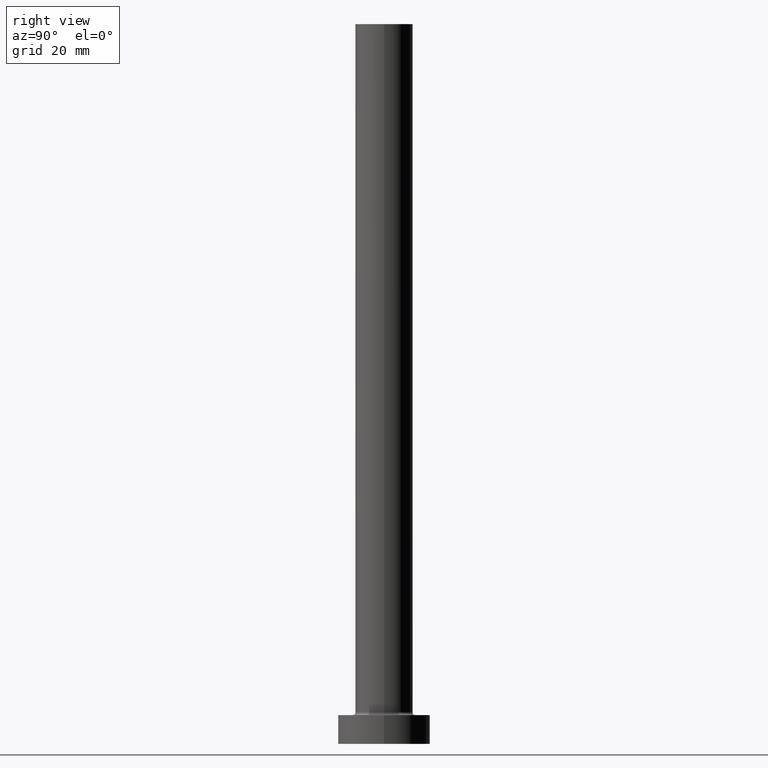
[diagram: clean part render]
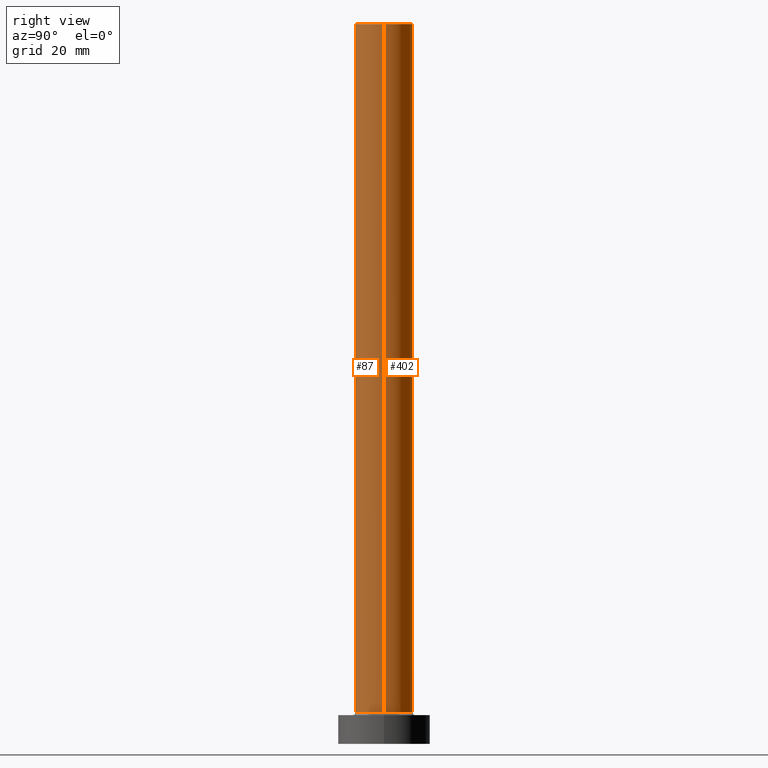
[diagram: same view with one multi-face feature highlighted, each face labeled with its STEP entity id]
A machine part, right view. The highlighted faces form ONE feature: a constant-radius fillet chain: 2 tangent blend faces with common blend radius 5 mm. The faces share edges in the B-rep.
Their STEP definitions:
[1] entity #402 (Cylinder):
#7 = CARTESIAN_POINT ( 'NONE',  ( -5.000000000000000000, 0.000000000000000000, 125.0000000000000000 ) ) ;
#25 = CARTESIAN_POINT ( 'NONE',  ( 5.000000000000000000, 6.123233995736766282E-16, 5.500000000000005329 ) ) ;
#39 = CARTESIAN_POINT ( 'NONE',  ( -5.000000000000000000, 0.000000000000000000, 125.0000000000000000 ) ) ;
#47 = DIRECTION ( 'NONE',  ( 0.000000000000000000, 0.000000000000000000, 1.000000000000000000 ) ) ;
#61 = LINE ( 'NONE', #190, #149 ) ;
#62 = EDGE_LOOP ( 'NONE', ( #317, #127, #305, #196 ) ) ;
#97 = DIRECTION ( 'NONE',  ( 1.000000000000000000, 0.000000000000000000, 0.000000000000000000 ) ) ;
#105 = LINE ( 'NONE', #39, #406 ) ;
#113 = CARTESIAN_POINT ( 'NONE',  ( 5.000000000000000000, 6.123233995736766282E-16, 125.0000000000000000 ) ) ;
#127 = ORIENTED_EDGE ( 'NONE', *, *, #294, .T. ) ;
#129 = VERTEX_POINT ( 'NONE', #113 ) ;
#139 = VERTEX_POINT ( 'NONE', #7 ) ;
#142 = FACE_OUTER_BOUND ( 'NONE', #62, .T. ) ;
#148 = CIRCLE ( 'NONE', #206, 5.000000000000000000 ) ;
#149 = VECTOR ( 'NONE', #445, 1000.000000000000000 ) ;
#158 = VERTEX_POINT ( 'NONE', #259 ) ;
#172 = AXIS2_PLACEMENT_3D ( 'NONE', #413, #419, #97 ) ;
#173 = EDGE_CURVE ( 'NONE', #293, #158, #148, .T. ) ;
#189 = DIRECTION ( 'NONE',  ( 1.000000000000000000, 0.000000000000000000, 0.000000000000000000 ) ) ;
#190 = CARTESIAN_POINT ( 'NONE',  ( 5.000000000000000000, 6.123233995736766282E-16, 125.0000000000000000 ) ) ;
#196 = ORIENTED_EDGE ( 'NONE', *, *, #381, .F. ) ;
#206 = AXIS2_PLACEMENT_3D ( 'NONE', #360, #47, #189 ) ;
#259 = CARTESIAN_POINT ( 'NONE',  ( -5.000000000000000000, 0.000000000000000000, 5.500000000000005329 ) ) ;
#282 = DIRECTION ( 'NONE',  ( -0.000000000000000000, -0.000000000000000000, -1.000000000000000000 ) ) ;
#293 = VERTEX_POINT ( 'NONE', #25 ) ;
#294 = EDGE_CURVE ( 'NONE', #129, #293, #61, .T. ) ;
#305 = ORIENTED_EDGE ( 'NONE', *, *, #173, .T. ) ;
#315 = EDGE_CURVE ( 'NONE', #129, #139, #449, .T. ) ;
#317 = ORIENTED_EDGE ( 'NONE', *, *, #315, .F. ) ;
#360 = CARTESIAN_POINT ( 'NONE',  ( 0.000000000000000000, 0.000000000000000000, 5.500000000000005329 ) ) ;
#371 = AXIS2_PLACEMENT_3D ( 'NONE', #378, #425, #457 ) ;
#378 = CARTESIAN_POINT ( 'NONE',  ( 0.000000000000000000, 0.000000000000000000, 125.0000000000000000 ) ) ;
#381 = EDGE_CURVE ( 'NONE', #139, #158, #105, .T. ) ;
#388 = CYLINDRICAL_SURFACE ( 'NONE', #371, 5.000000000000000000 ) ;
#402 = ADVANCED_FACE ( 'NONE', ( #142 ), #388, .T. ) ;
#406 = VECTOR ( 'NONE', #282, 1000.000000000000000 ) ;
#413 = CARTESIAN_POINT ( 'NONE',  ( 0.000000000000000000, 0.000000000000000000, 125.0000000000000000 ) ) ;
#419 = DIRECTION ( 'NONE',  ( 0.000000000000000000, 0.000000000000000000, 1.000000000000000000 ) ) ;
#425 = DIRECTION ( 'NONE',  ( -0.000000000000000000, -0.000000000000000000, -1.000000000000000000 ) ) ;
#445 = DIRECTION ( 'NONE',  ( -0.000000000000000000, -0.000000000000000000, -1.000000000000000000 ) ) ;
#449 = CIRCLE ( 'NONE', #172, 5.000000000000000000 ) ;
#457 = DIRECTION ( 'NONE',  ( -1.000000000000000000, 0.000000000000000000, 0.000000000000000000 ) ) ;
[2] entity #87 (Cylinder):
#7 = CARTESIAN_POINT ( 'NONE',  ( -5.000000000000000000, 0.000000000000000000, 125.0000000000000000 ) ) ;
#16 = ORIENTED_EDGE ( 'NONE', *, *, #246, .F. ) ;
#25 = CARTESIAN_POINT ( 'NONE',  ( 5.000000000000000000, 6.123233995736766282E-16, 5.500000000000005329 ) ) ;
#27 = DIRECTION ( 'NONE',  ( 0.000000000000000000, 0.000000000000000000, 1.000000000000000000 ) ) ;
#37 = AXIS2_PLACEMENT_3D ( 'NONE', #409, #128, #58 ) ;
#39 = CARTESIAN_POINT ( 'NONE',  ( -5.000000000000000000, 0.000000000000000000, 125.0000000000000000 ) ) ;
#58 = DIRECTION ( 'NONE',  ( 1.000000000000000000, 0.000000000000000000, 0.000000000000000000 ) ) ;
#61 = LINE ( 'NONE', #190, #149 ) ;
#87 = ADVANCED_FACE ( 'NONE', ( #398 ), #123, .T. ) ;
#89 = EDGE_LOOP ( 'NONE', ( #446, #16, #416, #342 ) ) ;
#105 = LINE ( 'NONE', #39, #406 ) ;
#113 = CARTESIAN_POINT ( 'NONE',  ( 5.000000000000000000, 6.123233995736766282E-16, 125.0000000000000000 ) ) ;
#123 = CYLINDRICAL_SURFACE ( 'NONE', #349, 5.000000000000000000 ) ;
#128 = DIRECTION ( 'NONE',  ( 0.000000000000000000, 0.000000000000000000, 1.000000000000000000 ) ) ;
#129 = VERTEX_POINT ( 'NONE', #113 ) ;
#139 = VERTEX_POINT ( 'NONE', #7 ) ;
#149 = VECTOR ( 'NONE', #445, 1000.000000000000000 ) ;
#158 = VERTEX_POINT ( 'NONE', #259 ) ;
#183 = DIRECTION ( 'NONE',  ( -0.000000000000000000, -0.000000000000000000, -1.000000000000000000 ) ) ;
#187 = CARTESIAN_POINT ( 'NONE',  ( 0.000000000000000000, 0.000000000000000000, 125.0000000000000000 ) ) ;
#190 = CARTESIAN_POINT ( 'NONE',  ( 5.000000000000000000, 6.123233995736766282E-16, 125.0000000000000000 ) ) ;
#213 = AXIS2_PLACEMENT_3D ( 'NONE', #297, #27, #332 ) ;
#246 = EDGE_CURVE ( 'NONE', #139, #129, #412, .T. ) ;
#259 = CARTESIAN_POINT ( 'NONE',  ( -5.000000000000000000, 0.000000000000000000, 5.500000000000005329 ) ) ;
#282 = DIRECTION ( 'NONE',  ( -0.000000000000000000, -0.000000000000000000, -1.000000000000000000 ) ) ;
#293 = VERTEX_POINT ( 'NONE', #25 ) ;
#294 = EDGE_CURVE ( 'NONE', #129, #293, #61, .T. ) ;
#297 = CARTESIAN_POINT ( 'NONE',  ( 0.000000000000000000, 0.000000000000000000, 5.500000000000005329 ) ) ;
#301 = EDGE_CURVE ( 'NONE', #158, #293, #380, .T. ) ;
#324 = DIRECTION ( 'NONE',  ( -1.000000000000000000, 0.000000000000000000, 0.000000000000000000 ) ) ;
#332 = DIRECTION ( 'NONE',  ( 1.000000000000000000, 0.000000000000000000, 0.000000000000000000 ) ) ;
#342 = ORIENTED_EDGE ( 'NONE', *, *, #301, .T. ) ;
#349 = AXIS2_PLACEMENT_3D ( 'NONE', #187, #183, #324 ) ;
#380 = CIRCLE ( 'NONE', #213, 5.000000000000000000 ) ;
#381 = EDGE_CURVE ( 'NONE', #139, #158, #105, .T. ) ;
#398 = FACE_OUTER_BOUND ( 'NONE', #89, .T. ) ;
#406 = VECTOR ( 'NONE', #282, 1000.000000000000000 ) ;
#409 = CARTESIAN_POINT ( 'NONE',  ( 0.000000000000000000, 0.000000000000000000, 125.0000000000000000 ) ) ;
#412 = CIRCLE ( 'NONE', #37, 5.000000000000000000 ) ;
#416 = ORIENTED_EDGE ( 'NONE', *, *, #381, .T. ) ;
#445 = DIRECTION ( 'NONE',  ( -0.000000000000000000, -0.000000000000000000, -1.000000000000000000 ) ) ;
#446 = ORIENTED_EDGE ( 'NONE', *, *, #294, .F. ) ;